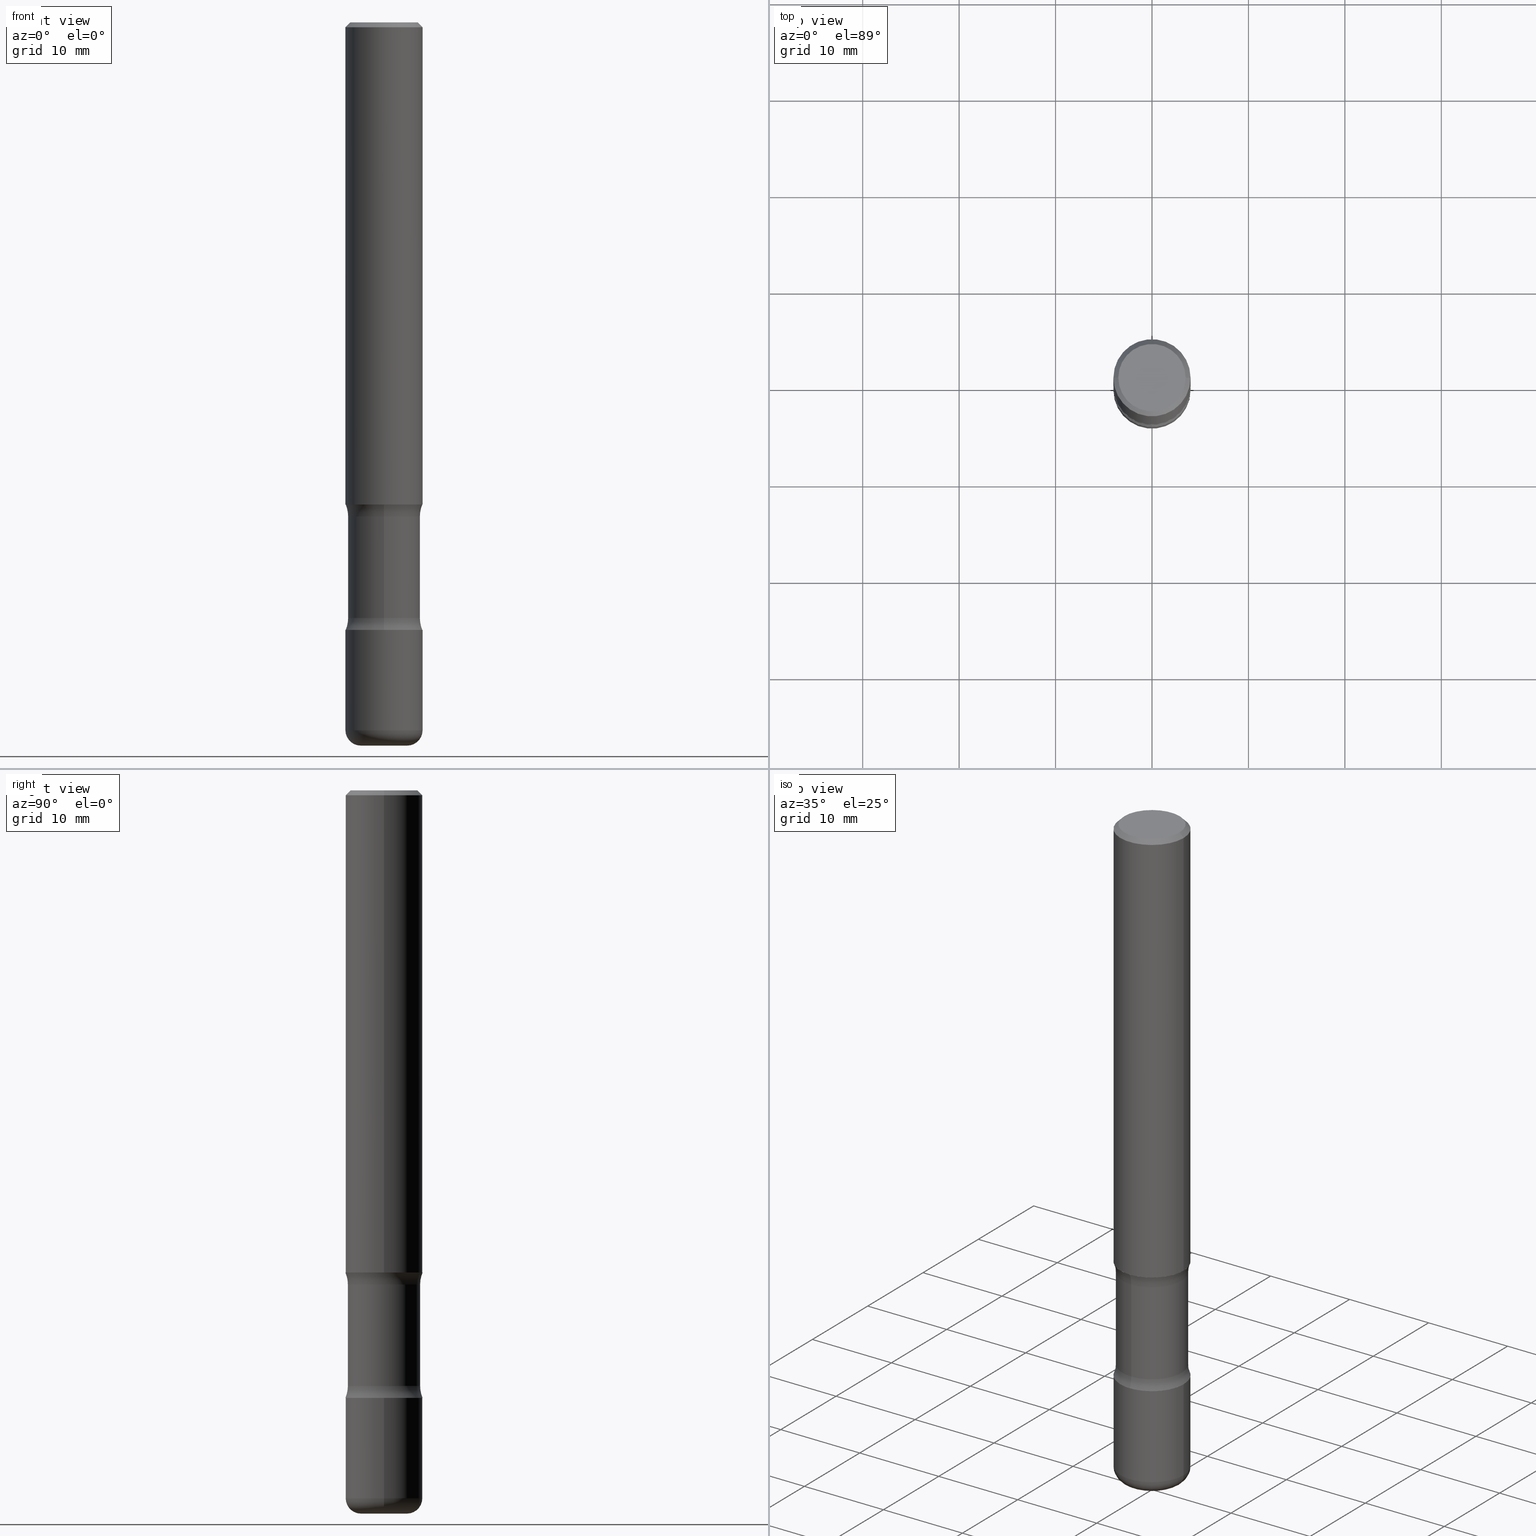
[diagram: canonical four-view strip — front | top / right | iso, engineering-drawing reading convention]
A machine part, canonical four-view strip (front | top / right | iso — engineering-drawing reading convention). The complete STEP part file that produces these views, byte-faithful:
ISO-10303-21;
HEADER;
FILE_DESCRIPTION (( 'STEP AP203' ),
    '1' );
FILE_NAME ('44952.STEP',
    '2024-03-02T03:51:45',
    ( '' ),
    ( '' ),
    'SwSTEP 2.0',
    'SolidWorks 2023',
    '' );
FILE_SCHEMA (( 'CONFIG_CONTROL_DESIGN' ));
ENDSEC;

DATA;
#1 = AXIS2_PLACEMENT_3D ( 'NONE', #12, #357, #534 ) ;
#2 = TOROIDAL_SURFACE ( 'NONE', #316, 0.2724999999999999090, 0.1249999999999999306 ) ;
#3 = CC_DESIGN_SECURITY_CLASSIFICATION ( #368, ( #401 ) ) ;
#4 = CARTESIAN_POINT ( 'NONE',  ( -0.1575000000000000844, 1.029986994958724576E-15, -0.02000000000000006981 ) ) ;
#5 = CARTESIAN_POINT ( 'NONE',  ( 6.065740826861613539E-29, -8.660270312866538847E-15, -2.480399999999999938 ) ) ;
#6 = EDGE_CURVE ( 'NONE', #45, #307, #181, .T. ) ;
#7 = ORIENTED_EDGE ( 'NONE', *, *, #93, .F. ) ;
#8 = DIRECTION ( 'NONE',  ( 1.962035113374103200E-29, -4.183785902285569894E-15, -1.000000000000000000 ) ) ;
#9 = MANIFOLD_SOLID_BREP ( 'Body-Move/Copy2[2]', #192 ) ;
#10 = FACE_OUTER_BOUND ( 'NONE', #52, .T. ) ;
#11 = CARTESIAN_POINT ( 'NONE',  ( 0.1375000000000000666, -1.046838268059733083E-15, -2.987958743069586240E-17 ) ) ;
#12 = CARTESIAN_POINT ( 'NONE',  ( 1.902857329669555641E-15, 0.2724999999999928035, -2.017489794855666929 ) ) ;
#13 = CC_DESIGN_DATE_AND_TIME_ASSIGNMENT ( #74, #362, ( #368 ) ) ;
#14 = CIRCLE ( 'NONE', #409, 0.1575000000000003619 ) ;
#15 = DIRECTION ( 'NONE',  ( 1.000000000000000000, -6.982962677686269866E-15, 0.000000000000000000 ) ) ;
#16 = CARTESIAN_POINT ( 'NONE',  ( 0.1575000000000003619, -1.118949939472451419E-14, -2.889800000000000590 ) ) ;
#17 = CARTESIAN_POINT ( 'NONE',  ( -0.1375000000000000666, 9.950721815702933218E-16, -2.987958743070971677E-17 ) ) ;
#18 = CALENDAR_DATE ( 2024, 1, 3 ) ;
#19 = EDGE_CURVE ( 'NONE', #298, #250, #95, .T. ) ;
#20 = AXIS2_PLACEMENT_3D ( 'NONE', #519, #264, #186 ) ;
#21 = CARTESIAN_POINT ( 'NONE',  ( 7.066915756113808586E-29, -1.008968277298892435E-14, -2.889800000000000590 ) ) ;
#22 = AXIS2_PLACEMENT_3D ( 'NONE', #21, #159, #288 ) ;
#23 = FACE_OUTER_BOUND ( 'NONE', #258, .T. ) ;
#24 = EDGE_CURVE ( 'NONE', #80, #390, #393, .T. ) ;
#25 = PERSON_AND_ORGANIZATION ( #191, #455 ) ;
#26 = EDGE_LOOP ( 'NONE', ( #391, #388 ) ) ;
#27 = ORIENTED_EDGE ( 'NONE', *, *, #299, .F. ) ;
#28 = DIRECTION ( 'NONE',  ( 1.000000000000000000, -6.860497997771530774E-15, 4.832320593947593736E-29 ) ) ;
#29 = ORIENTED_EDGE ( 'NONE', *, *, #178, .T. ) ;
#30 = ADVANCED_FACE ( 'NONE', ( #352 ), #523, .F. ) ;
#31 = PLANE ( 'NONE',  #104 ) ;
#32 = ORIENTED_EDGE ( 'NONE', *, *, #448, .F. ) ;
#33 = CLOSED_SHELL ( 'NONE', ( #385, #273, #216, #425, #275, #84, #317, #552 ) ) ;
#34 = CIRCLE ( 'NONE', #124, 0.06299999999999991718 ) ;
#35 = DIRECTION ( 'NONE',  ( -6.982962677686265922E-15, -1.000000000000000000, 0.000000000000000000 ) ) ;
#36 = EDGE_LOOP ( 'NONE', ( #474, #411, #117, #229 ) ) ;
#37 = DIRECTION ( 'NONE',  ( -2.445468806185136597E-29, 3.491481338843145583E-15, 1.000000000000000000 ) ) ;
#38 = VERTEX_POINT ( 'NONE', #438 ) ;
#39 = CARTESIAN_POINT ( 'NONE',  ( 0.09450000000000038924, -1.096953607037739528E-14, -2.952800000000000313 ) ) ;
#40 = ORIENTED_EDGE ( 'NONE', *, *, #150, .T. ) ;
#41 = CIRCLE ( 'NONE', #1, 0.1249999999999999445 ) ;
#42 = CC_DESIGN_PERSON_AND_ORGANIZATION_ASSIGNMENT ( #372, #198, ( #401 ) ) ;
#43 = CIRCLE ( 'NONE', #67, 0.1474999999999996037 ) ;
#44 = ADVANCED_FACE ( 'NONE', ( #10 ), #528, .T. ) ;
#45 = VERTEX_POINT ( 'NONE', #60 ) ;
#46 = ORIENTED_EDGE ( 'NONE', *, *, #91, .F. ) ;
#47 = DIRECTION ( 'NONE',  ( 6.982962677686265922E-15, 1.000000000000000000, -4.183785902285569894E-15 ) ) ;
#48 = DIRECTION ( 'NONE',  ( 1.000000000000000000, -6.982962677686269866E-15, 0.000000000000000000 ) ) ;
#49 = LENGTH_MEASURE_WITH_UNIT ( LENGTH_MEASURE( 0.02539999999999999897 ), #487 );
#50 = VECTOR ( 'NONE', #456, 39.37007874015748143 ) ;
#51 = LOCAL_TIME ( 22, 51, 45.00000000000000000, #371 ) ;
#52 = EDGE_LOOP ( 'NONE', ( #394, #88, #508, #546 ) ) ;
#53 = CARTESIAN_POINT ( 'NONE',  ( 5.157494750029220030E-29, -6.723553122559551895E-15, -2.017489794855666041 ) ) ;
#54 = DIRECTION ( 'NONE',  ( 6.982962677686265922E-15, 1.000000000000000000, -3.469013325287945405E-15 ) ) ;
#55 = DIRECTION ( 'NONE',  ( 1.000000000000000000, -6.982962677686267499E-15, 4.876176775795935793E-29 ) ) ;
#56 = AXIS2_PLACEMENT_3D ( 'NONE', #238, #536, #105 ) ;
#57 = LOCAL_TIME ( 22, 51, 45.00000000000000000, #505 ) ;
#58 = FACE_OUTER_BOUND ( 'NONE', #142, .T. ) ;
#59 = CALENDAR_DATE ( 2024, 1, 3 ) ;
#60 = CARTESIAN_POINT ( 'NONE',  ( 1.029986994958783741E-15, 0.1474999999999914990, -2.431410205144336256 ) ) ;
#61 = COORDINATED_UNIVERSAL_TIME_OFFSET ( 5, 0, .BEHIND. ) ;
#62 = EDGE_CURVE ( 'NONE', #253, #139, #133, .T. ) ;
#63 = APPROVAL_STATUS ( 'not_yet_approved' ) ;
#64 = VECTOR ( 'NONE', #397, 39.37007874015748143 ) ;
#65 = EDGE_LOOP ( 'NONE', ( #472, #32 ) ) ;
#66 = DIRECTION ( 'NONE',  ( -2.445468806185136597E-29, 3.491481338843145583E-15, 1.000000000000000000 ) ) ;
#67 = AXIS2_PLACEMENT_3D ( 'NONE', #53, #274, #308 ) ;
#68 = EDGE_CURVE ( 'NONE', #463, #298, #279, .T. ) ;
#69 = CALENDAR_DATE ( 2024, 1, 3 ) ;
#70 = DIRECTION ( 'NONE',  ( 6.982962677686265922E-15, 1.000000000000000000, -3.704200669375273043E-15 ) ) ;
#71 = VERTEX_POINT ( 'NONE', #404 ) ;
#72 = DIRECTION ( 'NONE',  ( 2.438088387897960049E-29, -3.491481338843145188E-15, -1.000000000000000000 ) ) ;
#73 = DIRECTION ( 'NONE',  ( 6.860497997771530774E-15, 1.000000000000000000, 0.000000000000000000 ) ) ;
#74 = DATE_AND_TIME ( #18, #125 ) ;
#75 = ORIENTED_EDGE ( 'NONE', *, *, #154, .T. ) ;
#76 = ORIENTED_EDGE ( 'NONE', *, *, #449, .T. ) ;
#77 = CARTESIAN_POINT ( 'NONE',  ( -0.09450000000000038924, -9.418219887695627890E-15, -2.889800000000000590 ) ) ;
#78 = AXIS2_PLACEMENT_3D ( 'NONE', #356, #265, #437 ) ;
#79 = DIRECTION ( 'NONE',  ( -2.445468806185136597E-29, 3.491481338843145583E-15, 1.000000000000000000 ) ) ;
#80 = VERTEX_POINT ( 'NONE', #17 ) ;
#81 = ORIENTED_EDGE ( 'NONE', *, *, #525, .T. ) ;
#82 = ORIENTED_EDGE ( 'NONE', *, *, #345, .T. ) ;
#83 = CIRCLE ( 'NONE', #219, 0.1575000000000003897 ) ;
#84 = ADVANCED_FACE ( 'NONE', ( #380 ), #31, .F. ) ;
#85 = CIRCLE ( 'NONE', #182, 0.1575000000000000844 ) ;
#86 = EDGE_CURVE ( 'NONE', #160, #307, #451, .T. ) ;
#87 = EDGE_LOOP ( 'NONE', ( #344, #526, #294, #213 ) ) ;
#88 = ORIENTED_EDGE ( 'NONE', *, *, #501, .F. ) ;
#89 = CYLINDRICAL_SURFACE ( 'NONE', #496, 0.1575000000000003064 ) ;
#90 = DIRECTION ( 'NONE',  ( 2.438088387897960049E-29, -3.491481338843145188E-15, -1.000000000000000000 ) ) ;
#91 = EDGE_CURVE ( 'NONE', #160, #139, #333, .T. ) ;
#92 = CARTESIAN_POINT ( 'NONE',  ( 0.1575000000000005007, -7.972797637248326287E-15, -1.968500000000001249 ) ) ;
#93 = EDGE_CURVE ( 'NONE', #463, #71, #83, .T. ) ;
#94 = CARTESIAN_POINT ( 'NONE',  ( 0.09450000000000038924, -1.074957274603027794E-14, -2.889800000000000590 ) ) ;
#95 = CIRCLE ( 'NONE', #123, 0.1575000000000003619 ) ;
#96 = CIRCLE ( 'NONE', #324, 0.1375000000000000666 ) ;
#97 = CC_DESIGN_APPROVAL ( #533, ( #368 ) ) ;
#98 = DIRECTION ( 'NONE',  ( 1.962035113374103200E-29, -4.183785902285569894E-15, -1.000000000000000000 ) ) ;
#99 = EDGE_CURVE ( 'NONE', #390, #207, #464, .T. ) ;
#100 = DIRECTION ( 'NONE',  ( 6.860497997771530774E-15, 1.000000000000000000, 0.000000000000000000 ) ) ;
#101 = CARTESIAN_POINT ( 'NONE',  ( 4.890937612370289799E-31, -6.982962677686315028E-17, -0.02000000000000006981 ) ) ;
#102 = CARTESIAN_POINT ( 'NONE',  ( 4.813905344975444077E-29, -6.872981015512735652E-15, -1.968500000000001249 ) ) ;
#103 = DIRECTION ( 'NONE',  ( 6.982962677686265922E-15, 1.000000000000000000, -3.704200669375281721E-15 ) ) ;
#104 = AXIS2_PLACEMENT_3D ( 'NONE', #121, #295, #157 ) ;
#105 = DIRECTION ( 'NONE',  ( -1.000000000000000000, 6.982962677686267499E-15, 0.000000000000000000 ) ) ;
#106 = AXIS2_PLACEMENT_3D ( 'NONE', #189, #266, #418 ) ;
#107 = COORDINATED_UNIVERSAL_TIME_OFFSET ( 5, 0, .BEHIND. ) ;
#108 = CC_DESIGN_APPROVAL ( #365, ( #401 ) ) ;
#109 = CYLINDRICAL_SURFACE ( 'NONE', #399, 0.1575000000000003064 ) ;
#110 = AXIS2_PLACEMENT_3D ( 'NONE', #547, #369, #327 ) ;
#111 = DIMENSIONAL_EXPONENTS ( 1.000000000000000000, 0.000000000000000000, 0.000000000000000000, 0.000000000000000000, 0.000000000000000000, 0.000000000000000000, 0.000000000000000000 ) ;
#112 = EDGE_LOOP ( 'NONE', ( #381, #429 ) ) ;
#113 = DIRECTION ( 'NONE',  ( 1.962035113374102920E-29, -4.183785902285569894E-15, -1.000000000000000000 ) ) ;
#114 = CIRCLE ( 'NONE', #201, 0.09450000000000038924 ) ;
#115 = FACE_OUTER_BOUND ( 'NONE', #112, .T. ) ;
#116 = APPROVAL_ROLE ( '' ) ;
#117 = ORIENTED_EDGE ( 'NONE', *, *, #448, .T. ) ;
#118 = EDGE_LOOP ( 'NONE', ( #131, #179, #82, #470 ) ) ;
#119 = ORIENTED_EDGE ( 'NONE', *, *, #6, .F. ) ;
#120 = ADVANCED_FACE ( 'NONE', ( #506 ), #199, .F. ) ;
#121 = CARTESIAN_POINT ( 'NONE',  ( 1.207425945004751623E-28, -5.572966082231867292E-17, -2.480399999999999938 ) ) ;
#122 = ORIENTED_EDGE ( 'NONE', *, *, #550, .T. ) ;
#123 = AXIS2_PLACEMENT_3D ( 'NONE', #353, #136, #48 ) ;
#124 = AXIS2_PLACEMENT_3D ( 'NONE', #94, #185, #145 ) ;
#125 = LOCAL_TIME ( 22, 51, 45.00000000000000000, #545 ) ;
#126 = ORIENTED_EDGE ( 'NONE', *, *, #468, .T. ) ;
#127 = ADVANCED_FACE ( 'NONE', ( #450 ), #109, .T. ) ;
#128 = EDGE_LOOP ( 'NONE', ( #245, #373, #289, #558 ) ) ;
#129 = DESIGN_CONTEXT ( 'detailed design', #412, 'design' ) ;
#130 = EDGE_CURVE ( 'NONE', #341, #307, #180, .T. ) ;
#131 = ORIENTED_EDGE ( 'NONE', *, *, #247, .F. ) ;
#132 = CC_DESIGN_PERSON_AND_ORGANIZATION_ASSIGNMENT ( #153, #457, ( #368 ) ) ;
#133 = CIRCLE ( 'NONE', #349, 0.1575000000000000289 ) ;
#134 = LOCAL_TIME ( 22, 51, 45.00000000000000000, #107 ) ;
#135 = FACE_OUTER_BOUND ( 'NONE', #87, .T. ) ;
#136 = DIRECTION ( 'NONE',  ( -2.445468806185136597E-29, 3.491481338843145583E-15, 1.000000000000000000 ) ) ;
#137 = DIRECTION ( 'NONE',  ( -2.445468806185136597E-29, 3.491481338843145583E-15, 1.000000000000000000 ) ) ;
#138 = ADVANCED_FACE ( 'NONE', ( #195 ), #403, .T. ) ;
#139 = VERTEX_POINT ( 'NONE', #315 ) ;
#140 = CARTESIAN_POINT ( 'NONE',  ( 5.148317776651165182E-29, -6.736695070757814587E-15, -2.017489794855666041 ) ) ;
#141 = CARTESIAN_POINT ( 'NONE',  ( 0.000000000000000000, 0.000000000000000000, 0.000000000000000000 ) ) ;
#142 = EDGE_LOOP ( 'NONE', ( #510, #40, #163, #458 ) ) ;
#143 = CARTESIAN_POINT ( 'NONE',  ( 0.000000000000000000, 0.000000000000000000, 0.000000000000000000 ) ) ;
#144 = DIRECTION ( 'NONE',  ( 1.000000000000000000, -6.982962677686267499E-15, 4.876176775795936353E-29 ) ) ;
#145 = DIRECTION ( 'NONE',  ( 1.000000000000000000, -6.982962677686265133E-15, 0.000000000000000000 ) ) ;
#146 = DIRECTION ( 'NONE',  ( -2.445468806185136597E-29, 3.491481338843145583E-15, 1.000000000000000000 ) ) ;
#147 = CC_DESIGN_PERSON_AND_ORGANIZATION_ASSIGNMENT ( #498, #283, ( #301 ) ) ;
#148 = DIRECTION ( 'NONE',  ( 1.000000000000000000, -6.982962677686265922E-15, 4.877551999457435150E-29 ) ) ;
#149 = CARTESIAN_POINT ( 'NONE',  ( -1.080528434648957995E-15, -0.1575000000000090772, -2.480399999999999494 ) ) ;
#150 = EDGE_CURVE ( 'NONE', #71, #250, #485, .T. ) ;
#151 = AXIS2_PLACEMENT_3D ( 'NONE', #476, #90, #433 ) ;
#152 = AXIS2_PLACEMENT_3D ( 'NONE', #402, #276, #15 ) ;
#153 = PERSON_AND_ORGANIZATION ( #191, #455 ) ;
#154 = EDGE_CURVE ( 'NONE', #38, #253, #41, .T. ) ;
#155 = APPLICATION_PROTOCOL_DEFINITION ( 'international standard', 'config_control_design', 1994, #540 ) ;
#156 = CARTESIAN_POINT ( 'NONE',  ( 4.813905344975444077E-29, -6.872981015512735652E-15, -1.968500000000001249 ) ) ;
#157 = DIRECTION ( 'NONE',  ( -6.982962677686265922E-15, -1.000000000000000000, 4.183785902285569894E-15 ) ) ;
#158 = APPROVAL_DATE_TIME ( #405, #365 ) ;
#159 = DIRECTION ( 'NONE',  ( -2.445468806185136597E-29, 3.491481338843145583E-15, 1.000000000000000000 ) ) ;
#160 = VERTEX_POINT ( 'NONE', #305 ) ;
#161 = APPROVAL_STATUS ( 'not_yet_approved' ) ;
#162 = AXIS2_PLACEMENT_3D ( 'NONE', #413, #72, #548 ) ;
#163 = ORIENTED_EDGE ( 'NONE', *, *, #19, .F. ) ;
#164 = DIRECTION ( 'NONE',  ( 1.962035113374103200E-29, -4.183785902285569894E-15, -1.000000000000000000 ) ) ;
#165 = TOROIDAL_SURFACE ( 'NONE', #529, 0.09450000000000038924, 0.06299999999999993106 ) ;
#166 = DIRECTION ( 'NONE',  ( 1.000000000000000000, -6.982962677686269866E-15, 0.000000000000000000 ) ) ;
#167 = ORIENTED_EDGE ( 'NONE', *, *, #130, .T. ) ;
#168 = DIRECTION ( 'NONE',  ( -2.445468806185136877E-29, 3.491481338843145188E-15, 1.000000000000000000 ) ) ;
#169 = VERTEX_POINT ( 'NONE', #478 ) ;
#170 = EDGE_CURVE ( 'NONE', #544, #207, #516, .T. ) ;
#171 = DIRECTION ( 'NONE',  ( 1.962035113374103200E-29, -4.183785902285569894E-15, -1.000000000000000000 ) ) ;
#172 = ORIENTED_EDGE ( 'NONE', *, *, #174, .T. ) ;
#173 = AXIS2_PLACEMENT_3D ( 'NONE', #77, #300, #311 ) ;
#174 = EDGE_CURVE ( 'NONE', #259, #390, #431, .T. ) ;
#175 = FACE_OUTER_BOUND ( 'NONE', #500, .T. ) ;
#176 = ORIENTED_EDGE ( 'NONE', *, *, #440, .T. ) ;
#177 = ORIENTED_EDGE ( 'NONE', *, *, #178, .F. ) ;
#178 = EDGE_CURVE ( 'NONE', #307, #45, #441, .T. ) ;
#179 = ORIENTED_EDGE ( 'NONE', *, *, #254, .T. ) ;
#180 = CIRCLE ( 'NONE', #408, 0.1249999999999999306 ) ;
#181 = CIRCLE ( 'NONE', #20, 0.1474999999999999645 ) ;
#182 = AXIS2_PLACEMENT_3D ( 'NONE', #101, #439, #319 ) ;
#183 = DIRECTION ( 'NONE',  ( -0.7071067811865472397, 2.468850131082253905E-15, -0.7071067811865477948 ) ) ;
#184 =( CONVERSION_BASED_UNIT ( 'INCH', #49 ) LENGTH_UNIT ( ) NAMED_UNIT ( #111 ) );
#185 = DIRECTION ( 'NONE',  ( -6.982962677686266711E-15, -1.000000000000000000, 3.491481338843145583E-15 ) ) ;
#186 = DIRECTION ( 'NONE',  ( 6.982962677686265922E-15, 1.000000000000000000, -3.704200669375273043E-15 ) ) ;
#187 = FACE_OUTER_BOUND ( 'NONE', #424, .T. ) ;
#188 = CC_DESIGN_DATE_AND_TIME_ASSIGNMENT ( #204, #291, ( #267 ) ) ;
#189 = CARTESIAN_POINT ( 'NONE',  ( 6.992606214419540956E-29, -1.063669077310624428E-14, -2.952800000000000757 ) ) ;
#190 = CYLINDRICAL_SURFACE ( 'NONE', #78, 0.1575000000000003619 ) ;
#191 = PERSON ( 'UNSPECIFIED', 'UNSPECIFIED', 'UNSPECIFIED', ('UNSPECIFIED'), ('UNSPECIFIED'), ('UNSPECIFIED') ) ;
#192 = CLOSED_SHELL ( 'NONE', ( #555, #454, #44, #120, #392, #127 ) ) ;
#193 = VECTOR ( 'NONE', #522, 39.37007874015748143 ) ;
#194 = CARTESIAN_POINT ( 'NONE',  ( 4.813905344975444077E-29, -6.872981015512735652E-15, -1.968500000000001249 ) ) ;
#195 = FACE_OUTER_BOUND ( 'NONE', #215, .T. ) ;
#196 = DIRECTION ( 'NONE',  ( 6.982962677686264344E-15, 1.000000000000000000, -3.469013325287952504E-15 ) ) ;
#197 = CARTESIAN_POINT ( 'NONE',  ( 5.157494750029220030E-29, -6.723553122559551895E-15, -2.017489794855666041 ) ) ;
#198 = PERSON_AND_ORGANIZATION_ROLE ( 'design_supplier' ) ;
#199 = PLANE ( 'NONE',  #284 ) ;
#200 = CIRCLE ( 'NONE', #173, 0.06299999999999991718 ) ;
#201 = AXIS2_PLACEMENT_3D ( 'NONE', #329, #481, #535 ) ;
#202 = CARTESIAN_POINT ( 'NONE',  ( 0.1575000000000003619, -1.099816621735589650E-15, 7.679978421878617651E-30 ) ) ;
#203 = PLANE ( 'NONE',  #162 ) ;
#204 = DATE_AND_TIME ( #59, #134 ) ;
#205 = ORIENTED_EDGE ( 'NONE', *, *, #360, .F. ) ;
#206 = DATE_AND_TIME ( #321, #57 ) ;
#207 = VERTEX_POINT ( 'NONE', #249 ) ;
#208 = DIRECTION ( 'NONE',  ( 1.000000000000000000, -6.982962677686265922E-15, 4.876176775795935793E-29 ) ) ;
#209 = CIRCLE ( 'NONE', #386, 0.1375000000000000666 ) ;
#210 = ORIENTED_EDGE ( 'NONE', *, *, #501, .T. ) ;
#211 = CIRCLE ( 'NONE', #334, 0.1575000000000003619 ) ;
#212 = DIRECTION ( 'NONE',  ( 2.438088387897960049E-29, -3.491481338843145188E-15, -1.000000000000000000 ) ) ;
#213 = ORIENTED_EDGE ( 'NONE', *, *, #6, .T. ) ;
#214 = CARTESIAN_POINT ( 'NONE',  ( 0.1575000000000003619, -9.760086934602128694E-15, -2.480399999999999938 ) ) ;
#215 = EDGE_LOOP ( 'NONE', ( #340, #76, #551, #460 ) ) ;
#216 = ADVANCED_FACE ( 'NONE', ( #414 ), #227, .F. ) ;
#217 = ORIENTED_EDGE ( 'NONE', *, *, #170, .F. ) ;
#218 = PRODUCT_DEFINITION_SHAPE ( 'NONE', 'NONE',  #267 ) ;
#219 = AXIS2_PLACEMENT_3D ( 'NONE', #467, #79, #446 ) ;
#220 = APPROVAL_PERSON_ORGANIZATION ( #452, #339, #116 ) ;
#221 = DIRECTION ( 'NONE',  ( -2.438088387897960049E-29, 3.491481338843145188E-15, 1.000000000000000000 ) ) ;
#222 = VERTEX_POINT ( 'NONE', #39 ) ;
#223 = FACE_OUTER_BOUND ( 'NONE', #262, .T. ) ;
#224 = EDGE_LOOP ( 'NONE', ( #303, #81 ) ) ;
#225 = ORIENTED_EDGE ( 'NONE', *, *, #86, .F. ) ;
#226 = FACE_OUTER_BOUND ( 'NONE', #128, .T. ) ;
#227 = TOROIDAL_SURFACE ( 'NONE', #539, 0.2724999999999995204, 0.1249999999999999445 ) ;
#228 = AXIS2_PLACEMENT_3D ( 'NONE', #156, #66, #166 ) ;
#229 = ORIENTED_EDGE ( 'NONE', *, *, #154, .F. ) ;
#230 = DIRECTION ( 'NONE',  ( 1.962035113374103200E-29, -4.183785902285569894E-15, -1.000000000000000000 ) ) ;
#231 = CARTESIAN_POINT ( 'NONE',  ( 1.029986994958792616E-15, 0.1474999999999891676, -2.952800000000001202 ) ) ;
#232 = DIRECTION ( 'NONE',  ( 6.982962677686265922E-15, 1.000000000000000000, -3.469013325287945405E-15 ) ) ;
#233 = CARTESIAN_POINT ( 'NONE',  ( -0.1575000000000003619, 1.119104808822160364E-15, -7.747322767151495202E-30 ) ) ;
#234 = CARTESIAN_POINT ( 'NONE',  ( 4.890937612370289799E-31, -6.982962677686315028E-17, -0.02000000000000006981 ) ) ;
#235 = EDGE_CURVE ( 'NONE', #556, #80, #209, .T. ) ;
#236 = CC_DESIGN_PERSON_AND_ORGANIZATION_ASSIGNMENT ( #459, #287, ( #401 ) ) ;
#237 = CARTESIAN_POINT ( 'NONE',  ( 5.969783302446763592E-29, -8.455075258413428143E-15, -2.431410205144335368 ) ) ;
#238 = CARTESIAN_POINT ( 'NONE',  ( 4.890937612370289799E-31, -6.982962677686315028E-17, -0.02000000000000006981 ) ) ;
#239 = CARTESIAN_POINT ( 'NONE',  ( 4.890937612370289799E-31, -6.982962677686315028E-17, -0.02000000000000006981 ) ) ;
#240 = APPROVAL_ROLE ( '' ) ;
#241 = CARTESIAN_POINT ( 'NONE',  ( -0.09450000000000038924, -9.304380588104755985E-15, -2.952800000000000313 ) ) ;
#242 = PLANE ( 'NONE',  #358 ) ;
#243 = ADVANCED_BREP_SHAPE_REPRESENTATION ( '44952', ( #383, #9, #515, #296 ), #285 ) ;
#244 = AXIS2_PLACEMENT_3D ( 'NONE', #102, #221, #208 ) ;
#245 = ORIENTED_EDGE ( 'NONE', *, *, #235, .F. ) ;
#246 = CARTESIAN_POINT ( 'NONE',  ( 1.099816621735637967E-15, 0.1574999999999935341, -1.968500000000001693 ) ) ;
#247 = EDGE_CURVE ( 'NONE', #292, #71, #200, .T. ) ;
#248 = DATE_AND_TIME ( #69, #326 ) ;
#249 = CARTESIAN_POINT ( 'NONE',  ( 0.1575000000000000844, -1.150358061425880064E-15, -0.02000000000000006981 ) ) ;
#250 = VERTEX_POINT ( 'NONE', #549 ) ;
#251 = SHAPE_DEFINITION_REPRESENTATION ( #218, #243 ) ;
#252 = FACE_OUTER_BOUND ( 'NONE', #320, .T. ) ;
#253 = VERTEX_POINT ( 'NONE', #246 ) ;
#254 = EDGE_CURVE ( 'NONE', #292, #222, #482, .T. ) ;
#255 = CIRCLE ( 'NONE', #228, 0.1575000000000005007 ) ;
#256 = ORIENTED_EDGE ( 'NONE', *, *, #86, .T. ) ;
#257 = AXIS2_PLACEMENT_3D ( 'NONE', #194, #313, #475 ) ;
#258 = EDGE_LOOP ( 'NONE', ( #122, #256, #119, #205 ) ) ;
#259 = VERTEX_POINT ( 'NONE', #376 ) ;
#260 = CARTESIAN_POINT ( 'NONE',  ( -0.1575000000000003064, 1.119104808822159970E-15, -7.747322767151490998E-30 ) ) ;
#261 = EDGE_LOOP ( 'NONE', ( #225, #126, #430, #177 ) ) ;
#262 = EDGE_LOOP ( 'NONE', ( #421, #559 ) ) ;
#263 = ADVANCED_FACE ( 'NONE', ( #115 ), #203, .T. ) ;
#264 = DIRECTION ( 'NONE',  ( 1.962035113374103200E-29, -4.183785902285569894E-15, -1.000000000000000000 ) ) ;
#265 = DIRECTION ( 'NONE',  ( -2.445468806185136597E-29, 3.491481338843145583E-15, 1.000000000000000000 ) ) ;
#266 = DIRECTION ( 'NONE',  ( 1.962035113374103200E-29, -4.183785902285569894E-15, -1.000000000000000000 ) ) ;
#267 = PRODUCT_DEFINITION ( 'UNKNOWN', '', #401, #129 ) ;
#268 = DIRECTION ( 'NONE',  ( 1.000000000000000000, -6.982962677686269077E-15, 0.000000000000000000 ) ) ;
#269 = CONICAL_SURFACE ( 'NONE', #466, 0.1575000000000000844, 0.7853981633974479459 ) ;
#270 = FACE_OUTER_BOUND ( 'NONE', #417, .T. ) ;
#271 = FACE_OUTER_BOUND ( 'NONE', #261, .T. ) ;
#272 = UNCERTAINTY_MEASURE_WITH_UNIT (LENGTH_MEASURE( 1.000000000000000082E-05 ), #184, 'distance_accuracy_value', 'NONE');
#273 = ADVANCED_FACE ( 'NONE', ( #270 ), #471, .F. ) ;
#274 = DIRECTION ( 'NONE',  ( 1.962035113374103200E-29, -4.183785902285569894E-15, -1.000000000000000000 ) ) ;
#275 = ADVANCED_FACE ( 'NONE', ( #389 ), #242, .F. ) ;
#276 = DIRECTION ( 'NONE',  ( -2.445468806185136597E-29, 3.491481338843145583E-15, 1.000000000000000000 ) ) ;
#277 = AXIS2_PLACEMENT_3D ( 'NONE', #234, #146, #367 ) ;
#278 = CIRCLE ( 'NONE', #257, 0.1575000000000005007 ) ;
#279 = LINE ( 'NONE', #202, #375 ) ;
#280 = EDGE_CURVE ( 'NONE', #259, #544, #255, .T. ) ;
#281 = APPROVAL_DATE_TIME ( #206, #339 ) ;
#282 = CARTESIAN_POINT ( 'NONE',  ( 9.601573681818620671E-16, 0.1375000000000000666, -4.950184778062842033E-16 ) ) ;
#283 = PERSON_AND_ORGANIZATION_ROLE ( 'design_owner' ) ;
#284 = AXIS2_PLACEMENT_3D ( 'NONE', #282, #212, #379 ) ;
#285 =( GEOMETRIC_REPRESENTATION_CONTEXT ( 3 ) GLOBAL_UNCERTAINTY_ASSIGNED_CONTEXT ( ( #272 ) ) GLOBAL_UNIT_ASSIGNED_CONTEXT ( ( #184, #370, #538 ) ) REPRESENTATION_CONTEXT ( 'NONE', 'WORKASPACE' ) );
#286 = CARTESIAN_POINT ( 'NONE',  ( -1.011923454671229450E-15, -0.1475000000000104283, -2.952800000000000313 ) ) ;
#287 = PERSON_AND_ORGANIZATION_ROLE ( 'creator' ) ;
#288 = DIRECTION ( 'NONE',  ( 1.000000000000000000, -6.982962677686273021E-15, 4.883557194083115143E-29 ) ) ;
#289 = ORIENTED_EDGE ( 'NONE', *, *, #531, .T. ) ;
#290 = ADVANCED_FACE ( 'NONE', ( #453 ), #426, .T. ) ;
#291 = DATE_TIME_ROLE ( 'creation_date' ) ;
#292 = VERTEX_POINT ( 'NONE', #241 ) ;
#293 = CC_DESIGN_PERSON_AND_ORGANIZATION_ASSIGNMENT ( #25, #445, ( #267 ) ) ;
#294 = ORIENTED_EDGE ( 'NONE', *, *, #299, .T. ) ;
#295 = DIRECTION ( 'NONE',  ( -1.962035113374102920E-29, 4.183785902285569894E-15, 1.000000000000000000 ) ) ;
#296 = AXIS2_PLACEMENT_3D ( 'NONE', #537, #330, #447 ) ;
#297 = ORIENTED_EDGE ( 'NONE', *, *, #247, .T. ) ;
#298 = VERTEX_POINT ( 'NONE', #214 ) ;
#299 = EDGE_CURVE ( 'NONE', #169, #45, #542, .T. ) ;
#300 = DIRECTION ( 'NONE',  ( 7.105427357601001859E-15, 1.000000000000000000, -3.491481338843145583E-15 ) ) ;
#301 = PRODUCT ( '44952', '44952', '', ( #410 ) ) ;
#302 = ORIENTED_EDGE ( 'NONE', *, *, #280, .T. ) ;
#303 = ORIENTED_EDGE ( 'NONE', *, *, #514, .T. ) ;
#304 = VECTOR ( 'NONE', #183, 39.37007874015748143 ) ;
#305 = CARTESIAN_POINT ( 'NONE',  ( -1.046225944660106443E-15, -0.1475000000000063483, -2.017489794855665597 ) ) ;
#306 = CIRCLE ( 'NONE', #152, 0.1575000000000003619 ) ;
#307 = VERTEX_POINT ( 'NONE', #346 ) ;
#308 = DIRECTION ( 'NONE',  ( 6.982962677686265922E-15, 1.000000000000000000, -3.704200669375281721E-15 ) ) ;
#309 = ORIENTED_EDGE ( 'NONE', *, *, #99, .F. ) ;
#310 = DIRECTION ( 'NONE',  ( -1.000000000000000000, 6.982962677686267499E-15, 0.000000000000000000 ) ) ;
#311 = DIRECTION ( 'NONE',  ( -1.000000000000000000, 7.105427357600993970E-15, 0.000000000000000000 ) ) ;
#312 = PLANE ( 'NONE',  #244 ) ;
#313 = DIRECTION ( 'NONE',  ( -2.445468806185136597E-29, 3.491481338843145583E-15, 1.000000000000000000 ) ) ;
#314 = AXIS2_PLACEMENT_3D ( 'NONE', #363, #541, #70 ) ;
#315 = CARTESIAN_POINT ( 'NONE',  ( -1.080528434648966081E-15, -0.1575000000000065792, -1.968500000000000583 ) ) ;
#316 = AXIS2_PLACEMENT_3D ( 'NONE', #237, #355, #462 ) ;
#317 = ADVANCED_FACE ( 'NONE', ( #135 ), #2, .F. ) ;
#318 = CARTESIAN_POINT ( 'NONE',  ( 7.066915756113808586E-29, -1.008968277298892435E-14, -2.889800000000000590 ) ) ;
#319 = DIRECTION ( 'NONE',  ( 1.000000000000000000, -6.982962677686267499E-15, 0.000000000000000000 ) ) ;
#320 = EDGE_LOOP ( 'NONE', ( #46, #423, #75, #469 ) ) ;
#321 = CALENDAR_DATE ( 2024, 1, 3 ) ;
#322 = CARTESIAN_POINT ( 'NONE',  ( 4.813905344975444077E-29, -6.872981015512735652E-15, -1.968500000000001249 ) ) ;
#323 = VECTOR ( 'NONE', #168, 39.37007874015748143 ) ;
#324 = AXIS2_PLACEMENT_3D ( 'NONE', #477, #436, #148 ) ;
#325 = EDGE_CURVE ( 'NONE', #222, #292, #114, .T. ) ;
#326 = LOCAL_TIME ( 22, 51, 45.00000000000000000, #61 ) ;
#327 = DIRECTION ( 'NONE',  ( 1.000000000000000000, -6.982962677686258033E-15, 0.000000000000000000 ) ) ;
#328 = PERSON_AND_ORGANIZATION ( #191, #455 ) ;
#329 = CARTESIAN_POINT ( 'NONE',  ( 7.220980290903472425E-29, -1.030964609733604011E-14, -2.952800000000000313 ) ) ;
#330 = DIRECTION ( 'NONE',  ( 0.000000000000000000, 0.000000000000000000, 1.000000000000000000 ) ) ;
#331 = SECURITY_CLASSIFICATION_LEVEL ( 'unclassified' ) ;
#332 = ORIENTED_EDGE ( 'NONE', *, *, #325, .T. ) ;
#333 = CIRCLE ( 'NONE', #512, 0.1249999999999999445 ) ;
#334 = AXIS2_PLACEMENT_3D ( 'NONE', #5, #98, #232 ) ;
#335 = DIRECTION ( 'NONE',  ( -2.445468806185136877E-29, 3.491481338843145188E-15, 1.000000000000000000 ) ) ;
#336 = APPROVAL_PERSON_ORGANIZATION ( #416, #365, #240 ) ;
#337 = APPROVAL_DATE_TIME ( #248, #533 ) ;
#338 = ORIENTED_EDGE ( 'NONE', *, *, #170, .T. ) ;
#339 = APPROVAL ( #63, 'UNSPECIFIED' ) ;
#340 = ORIENTED_EDGE ( 'NONE', *, *, #150, .F. ) ;
#341 = VERTEX_POINT ( 'NONE', #149 ) ;
#342 = AXIS2_PLACEMENT_3D ( 'NONE', #318, #137, #268 ) ;
#343 = DIRECTION ( 'NONE',  ( 1.000000000000000000, -6.982962677686265922E-15, 4.877551999457435150E-29 ) ) ;
#344 = ORIENTED_EDGE ( 'NONE', *, *, #130, .F. ) ;
#345 = EDGE_CURVE ( 'NONE', #222, #463, #34, .T. ) ;
#346 = CARTESIAN_POINT ( 'NONE',  ( -1.046225944660099738E-15, -0.1475000000000084022, -2.431410205144335368 ) ) ;
#347 = ORIENTED_EDGE ( 'NONE', *, *, #525, .F. ) ;
#348 = ORIENTED_EDGE ( 'NONE', *, *, #345, .F. ) ;
#349 = AXIS2_PLACEMENT_3D ( 'NONE', #490, #406, #196 ) ;
#350 = DIRECTION ( 'NONE',  ( 1.962035113374103200E-29, -4.183785902285569894E-15, -1.000000000000000000 ) ) ;
#351 = CIRCLE ( 'NONE', #554, 0.1474999999999996037 ) ;
#352 = FACE_OUTER_BOUND ( 'NONE', #26, .T. ) ;
#353 = CARTESIAN_POINT ( 'NONE',  ( 6.065740826861613539E-29, -8.660270312866538847E-15, -2.480399999999999938 ) ) ;
#354 = CYLINDRICAL_SURFACE ( 'NONE', #387, 0.1474999999999997979 ) ;
#355 = DIRECTION ( 'NONE',  ( 1.962035113374103200E-29, -4.183785902285569894E-15, -1.000000000000000000 ) ) ;
#356 = CARTESIAN_POINT ( 'NONE',  ( 0.000000000000000000, 0.000000000000000000, 0.000000000000000000 ) ) ;
#357 = DIRECTION ( 'NONE',  ( -1.000000000000000000, 6.982962677686265922E-15, -4.883557194083112340E-29 ) ) ;
#358 = AXIS2_PLACEMENT_3D ( 'NONE', #322, #113, #415 ) ;
#359 = DIRECTION ( 'NONE',  ( 6.982962677686264344E-15, 1.000000000000000000, -3.469013325287952504E-15 ) ) ;
#360 = EDGE_CURVE ( 'NONE', #38, #45, #480, .T. ) ;
#361 = ADVANCED_FACE ( 'NONE', ( #175 ), #165, .T. ) ;
#362 = DATE_TIME_ROLE ( 'classification_date' ) ;
#363 = CARTESIAN_POINT ( 'NONE',  ( 5.969621129157807163E-29, -8.455307499793547394E-15, -2.431410205144335812 ) ) ;
#364 = DIRECTION ( 'NONE',  ( 1.000000000000000000, -6.982962677686273021E-15, 4.883557194083115143E-29 ) ) ;
#365 = APPROVAL ( #161, 'UNSPECIFIED' ) ;
#366 = VECTOR ( 'NONE', #171, 39.37007874015748143 ) ;
#367 = DIRECTION ( 'NONE',  ( 1.000000000000000000, -6.982962677686267499E-15, 0.000000000000000000 ) ) ;
#368 = SECURITY_CLASSIFICATION ( '', '', #331 ) ;
#369 = DIRECTION ( 'NONE',  ( -2.445468806185136597E-29, 3.491481338843145583E-15, 1.000000000000000000 ) ) ;
#370 =( NAMED_UNIT ( * ) PLANE_ANGLE_UNIT ( ) SI_UNIT ( $, .RADIAN. ) );
#371 = COORDINATED_UNIVERSAL_TIME_OFFSET ( 5, 0, .BEHIND. ) ;
#372 = PERSON_AND_ORGANIZATION ( #191, #455 ) ;
#373 = ORIENTED_EDGE ( 'NONE', *, *, #422, .T. ) ;
#374 = CARTESIAN_POINT ( 'NONE',  ( 7.066915756113808586E-29, -1.008968277298892435E-14, -2.889800000000000590 ) ) ;
#375 = VECTOR ( 'NONE', #444, 39.37007874015748143 ) ;
#376 = CARTESIAN_POINT ( 'NONE',  ( -0.1575000000000005007, -2.352300512322634377E-15, -1.968500000000001249 ) ) ;
#377 = CC_DESIGN_APPROVAL ( #339, ( #267 ) ) ;
#378 = ORIENTED_EDGE ( 'NONE', *, *, #531, .F. ) ;
#379 = DIRECTION ( 'NONE',  ( -1.000000000000000000, 6.982962677686265922E-15, -4.876176775795935793E-29 ) ) ;
#380 = FACE_OUTER_BOUND ( 'NONE', #224, .T. ) ;
#381 = ORIENTED_EDGE ( 'NONE', *, *, #325, .F. ) ;
#382 = CARTESIAN_POINT ( 'NONE',  ( 0.1575000000000003064, -1.099816621735589255E-15, 7.679978421878613447E-30 ) ) ;
#383 = MANIFOLD_SOLID_BREP ( 'Body-Move/Copy2[1]', #491 ) ;
#384 = CARTESIAN_POINT ( 'NONE',  ( 7.306959900346538153E-46, -1.043240219266313067E-31, -2.987958743070287587E-17 ) ) ;
#385 = ADVANCED_FACE ( 'NONE', ( #23 ), #473, .T. ) ;
#386 = AXIS2_PLACEMENT_3D ( 'NONE', #384, #521, #343 ) ;
#387 = AXIS2_PLACEMENT_3D ( 'NONE', #395, #8, #398 ) ;
#388 = ORIENTED_EDGE ( 'NONE', *, *, #461, .T. ) ;
#389 = FACE_OUTER_BOUND ( 'NONE', #65, .T. ) ;
#390 = VERTEX_POINT ( 'NONE', #465 ) ;
#391 = ORIENTED_EDGE ( 'NONE', *, *, #19, .T. ) ;
#392 = ADVANCED_FACE ( 'NONE', ( #223 ), #312, .F. ) ;
#393 = LINE ( 'NONE', #4, #304 ) ;
#394 = ORIENTED_EDGE ( 'NONE', *, *, #422, .F. ) ;
#395 = CARTESIAN_POINT ( 'NONE',  ( 6.992606214419540956E-29, -1.063669077310624428E-14, -2.952800000000000757 ) ) ;
#396 = DIRECTION ( 'NONE',  ( -2.445468806185136597E-29, 3.491481338843145583E-15, 1.000000000000000000 ) ) ;
#397 = DIRECTION ( 'NONE',  ( -2.445468806185136877E-29, 3.491481338843145188E-15, 1.000000000000000000 ) ) ;
#398 = DIRECTION ( 'NONE',  ( 6.982962677686265922E-15, 1.000000000000000000, -3.704200669375276987E-15 ) ) ;
#399 = AXIS2_PLACEMENT_3D ( 'NONE', #486, #37, #55 ) ;
#400 = AXIS2_PLACEMENT_3D ( 'NONE', #140, #524, #532 ) ;
#401 = PRODUCT_DEFINITION_FORMATION_WITH_SPECIFIED_SOURCE ( 'ANY', '', #301, .NOT_KNOWN. ) ;
#402 = CARTESIAN_POINT ( 'NONE',  ( 6.065740826861613539E-29, -8.660270312866538847E-15, -2.480399999999999938 ) ) ;
#403 = CYLINDRICAL_SURFACE ( 'NONE', #492, 0.1575000000000003619 ) ;
#404 = CARTESIAN_POINT ( 'NONE',  ( -0.1575000000000003619, -8.970577964166765164E-15, -2.889800000000000590 ) ) ;
#405 = DATE_AND_TIME ( #543, #51 ) ;
#406 = DIRECTION ( 'NONE',  ( 1.962035113374103200E-29, -4.183785902285569894E-15, -1.000000000000000000 ) ) ;
#407 = APPLICATION_PROTOCOL_DEFINITION ( 'international standard', 'config_control_design', 1994, #412 ) ;
#408 = AXIS2_PLACEMENT_3D ( 'NONE', #494, #442, #100 ) ;
#409 = AXIS2_PLACEMENT_3D ( 'NONE', #435, #520, #54 ) ;
#410 = MECHANICAL_CONTEXT ( 'NONE', #540, 'mechanical' ) ;
#411 = ORIENTED_EDGE ( 'NONE', *, *, #91, .T. ) ;
#412 = APPLICATION_CONTEXT ( 'configuration controlled 3d designs of mechanical parts and assemblies' ) ;
#413 = CARTESIAN_POINT ( 'NONE',  ( 1.914241352112389587E-28, 6.762524814180949395E-15, -2.952800000000000313 ) ) ;
#414 = FACE_OUTER_BOUND ( 'NONE', #36, .T. ) ;
#415 = DIRECTION ( 'NONE',  ( 6.982962677686265922E-15, 1.000000000000000000, -4.183785902285569894E-15 ) ) ;
#416 = PERSON_AND_ORGANIZATION ( #191, #455 ) ;
#417 = EDGE_LOOP ( 'NONE', ( #347, #167, #29, #27 ) ) ;
#418 = DIRECTION ( 'NONE',  ( 6.982962677686265922E-15, 1.000000000000000000, -3.704200669375276987E-15 ) ) ;
#419 = TOROIDAL_SURFACE ( 'NONE', #400, 0.2724999999999995204, 0.1249999999999999445 ) ;
#420 = DIRECTION ( 'NONE',  ( -1.000000000000000000, 6.982962677686265922E-15, -4.883557194083112340E-29 ) ) ;
#421 = ORIENTED_EDGE ( 'NONE', *, *, #440, .F. ) ;
#422 = EDGE_CURVE ( 'NONE', #556, #207, #503, .T. ) ;
#423 = ORIENTED_EDGE ( 'NONE', *, *, #550, .F. ) ;
#424 = EDGE_LOOP ( 'NONE', ( #176, #172, #378, #217 ) ) ;
#425 = ADVANCED_FACE ( 'NONE', ( #252 ), #419, .F. ) ;
#426 = TOROIDAL_SURFACE ( 'NONE', #22, 0.09450000000000038924, 0.06299999999999993106 ) ;
#427 = EDGE_LOOP ( 'NONE', ( #518, #302, #338, #309 ) ) ;
#428 = CARTESIAN_POINT ( 'NONE',  ( 5.148317776651165182E-29, -6.736695070757814587E-15, -2.017489794855666041 ) ) ;
#429 = ORIENTED_EDGE ( 'NONE', *, *, #254, .F. ) ;
#430 = ORIENTED_EDGE ( 'NONE', *, *, #360, .T. ) ;
#431 = LINE ( 'NONE', #260, #323 ) ;
#432 = VECTOR ( 'NONE', #335, 39.37007874015748143 ) ;
#433 = DIRECTION ( 'NONE',  ( -1.000000000000000000, 6.982962677686265922E-15, -4.876176775795935793E-29 ) ) ;
#434 = AXIS2_PLACEMENT_3D ( 'NONE', #507, #420, #35 ) ;
#435 = CARTESIAN_POINT ( 'NONE',  ( 6.065740826861613539E-29, -8.660270312866538847E-15, -2.480399999999999938 ) ) ;
#436 = DIRECTION ( 'NONE',  ( -2.445468806185136597E-29, 3.491481338843145583E-15, 1.000000000000000000 ) ) ;
#437 = DIRECTION ( 'NONE',  ( 1.000000000000000000, -6.982962677686267499E-15, 4.876176775795936353E-29 ) ) ;
#438 = CARTESIAN_POINT ( 'NONE',  ( 1.029986994958773091E-15, 0.1474999999999928868, -2.017489794855666485 ) ) ;
#439 = DIRECTION ( 'NONE',  ( -2.445468806185136597E-29, 3.491481338843145583E-15, 1.000000000000000000 ) ) ;
#440 = EDGE_CURVE ( 'NONE', #544, #259, #278, .T. ) ;
#441 = CIRCLE ( 'NONE', #314, 0.1474999999999999645 ) ;
#442 = DIRECTION ( 'NONE',  ( 1.000000000000000000, -6.860497997771530774E-15, 4.832320593947593736E-29 ) ) ;
#443 = APPROVAL_PERSON_ORGANIZATION ( #328, #533, #497 ) ;
#444 = DIRECTION ( 'NONE',  ( -2.445468806185136877E-29, 3.491481338843145188E-15, 1.000000000000000000 ) ) ;
#445 = PERSON_AND_ORGANIZATION_ROLE ( 'creator' ) ;
#446 = DIRECTION ( 'NONE',  ( 1.000000000000000000, -6.982962677686269077E-15, 0.000000000000000000 ) ) ;
#447 = DIRECTION ( 'NONE',  ( 1.000000000000000000, 0.000000000000000000, 0.000000000000000000 ) ) ;
#448 = EDGE_CURVE ( 'NONE', #139, #253, #513, .T. ) ;
#449 = EDGE_CURVE ( 'NONE', #71, #463, #502, .T. ) ;
#450 = FACE_OUTER_BOUND ( 'NONE', #427, .T. ) ;
#451 = LINE ( 'NONE', #286, #50 ) ;
#452 = PERSON_AND_ORGANIZATION ( #191, #455 ) ;
#453 = FACE_OUTER_BOUND ( 'NONE', #118, .T. ) ;
#454 = ADVANCED_FACE ( 'NONE', ( #226 ), #269, .T. ) ;
#455 = ORGANIZATION ( 'UNSPECIFIED', 'UNSPECIFIED', '' ) ;
#456 = DIRECTION ( 'NONE',  ( 1.962035113374103200E-29, -4.183785902285569894E-15, -1.000000000000000000 ) ) ;
#457 = PERSON_AND_ORGANIZATION_ROLE ( 'classification_officer' ) ;
#458 = ORIENTED_EDGE ( 'NONE', *, *, #68, .F. ) ;
#459 = PERSON_AND_ORGANIZATION ( #191, #455 ) ;
#460 = ORIENTED_EDGE ( 'NONE', *, *, #461, .F. ) ;
#461 = EDGE_CURVE ( 'NONE', #250, #298, #306, .T. ) ;
#462 = DIRECTION ( 'NONE',  ( 6.982962677686265922E-15, 1.000000000000000000, -4.183785902285569894E-15 ) ) ;
#463 = VERTEX_POINT ( 'NONE', #16 ) ;
#464 = CIRCLE ( 'NONE', #277, 0.1575000000000000844 ) ;
#465 = CARTESIAN_POINT ( 'NONE',  ( -0.1575000000000000844, 1.029986994958724576E-15, -0.02000000000000006981 ) ) ;
#466 = AXIS2_PLACEMENT_3D ( 'NONE', #239, #484, #310 ) ;
#467 = CARTESIAN_POINT ( 'NONE',  ( 7.066915756113808586E-29, -1.008968277298892435E-14, -2.889800000000000590 ) ) ;
#468 = EDGE_CURVE ( 'NONE', #160, #38, #351, .T. ) ;
#469 = ORIENTED_EDGE ( 'NONE', *, *, #62, .T. ) ;
#470 = ORIENTED_EDGE ( 'NONE', *, *, #449, .F. ) ;
#471 = TOROIDAL_SURFACE ( 'NONE', #493, 0.2724999999999999090, 0.1249999999999999306 ) ;
#472 = ORIENTED_EDGE ( 'NONE', *, *, #62, .F. ) ;
#473 = CYLINDRICAL_SURFACE ( 'NONE', #106, 0.1474999999999997979 ) ;
#474 = ORIENTED_EDGE ( 'NONE', *, *, #468, .F. ) ;
#475 = DIRECTION ( 'NONE',  ( 1.000000000000000000, -6.982962677686269866E-15, 0.000000000000000000 ) ) ;
#476 = CARTESIAN_POINT ( 'NONE',  ( 1.207425945004751623E-28, -5.572966082231867292E-17, -2.480399999999999938 ) ) ;
#477 = CARTESIAN_POINT ( 'NONE',  ( 7.306959900346538153E-46, -1.043240219266313067E-31, -2.987958743070287587E-17 ) ) ;
#478 = CARTESIAN_POINT ( 'NONE',  ( 1.099816621735650392E-15, 0.1574999999999917299, -2.480400000000000826 ) ) ;
#479 = DIRECTION ( 'NONE',  ( -2.445468806185136597E-29, 3.491481338843145583E-15, 1.000000000000000000 ) ) ;
#480 = LINE ( 'NONE', #231, #366 ) ;
#481 = DIRECTION ( 'NONE',  ( -2.445468806185136597E-29, 3.491481338843145583E-15, 1.000000000000000000 ) ) ;
#482 = CIRCLE ( 'NONE', #110, 0.09450000000000038924 ) ;
#483 = AXIS2_PLACEMENT_3D ( 'NONE', #530, #527, #359 ) ;
#484 = DIRECTION ( 'NONE',  ( 2.445468806185136597E-29, -3.491481338843145583E-15, -1.000000000000000000 ) ) ;
#485 = LINE ( 'NONE', #233, #64 ) ;
#486 = CARTESIAN_POINT ( 'NONE',  ( 0.000000000000000000, 0.000000000000000000, 0.000000000000000000 ) ) ;
#487 =( LENGTH_UNIT ( ) NAMED_UNIT ( * ) SI_UNIT ( $, .METRE. ) );
#488 = DIRECTION ( 'NONE',  ( 1.000000000000000000, -6.982962677686267499E-15, 4.876176775795935793E-29 ) ) ;
#489 = CARTESIAN_POINT ( 'NONE',  ( 0.1575000000000000844, -1.150358061425880064E-15, -0.02000000000000006981 ) ) ;
#490 = CARTESIAN_POINT ( 'NONE',  ( 5.061375052325411412E-29, -6.518590309486559652E-15, -1.968500000000001249 ) ) ;
#491 = CLOSED_SHELL ( 'NONE', ( #560, #361, #263, #290, #138, #30 ) ) ;
#492 = AXIS2_PLACEMENT_3D ( 'NONE', #141, #479, #144 ) ;
#493 = AXIS2_PLACEMENT_3D ( 'NONE', #509, #164, #511 ) ;
#494 = CARTESIAN_POINT ( 'NONE',  ( -1.869485704392681940E-15, -0.2725000000000084022, -2.431410205144334480 ) ) ;
#495 = DIRECTION ( 'NONE',  ( -2.445468806185136597E-29, 3.491481338843145583E-15, 1.000000000000000000 ) ) ;
#496 = AXIS2_PLACEMENT_3D ( 'NONE', #143, #396, #488 ) ;
#497 = APPROVAL_ROLE ( '' ) ;
#498 = PERSON_AND_ORGANIZATION ( #191, #455 ) ;
#499 = APPROVAL_STATUS ( 'not_yet_approved' ) ;
#500 = EDGE_LOOP ( 'NONE', ( #332, #297, #7, #348 ) ) ;
#501 = EDGE_CURVE ( 'NONE', #80, #556, #96, .T. ) ;
#502 = CIRCLE ( 'NONE', #342, 0.1575000000000003897 ) ;
#503 = LINE ( 'NONE', #489, #193 ) ;
#504 = CARTESIAN_POINT ( 'NONE',  ( -1.869485704392687462E-15, -0.2725000000000062372, -2.017489794855664709 ) ) ;
#505 = COORDINATED_UNIVERSAL_TIME_OFFSET ( 5, 0, .BEHIND. ) ;
#506 = FACE_OUTER_BOUND ( 'NONE', #517, .T. ) ;
#507 = CARTESIAN_POINT ( 'NONE',  ( 1.902857329669566685E-15, 0.2724999999999914713, -2.431410205144336700 ) ) ;
#508 = ORIENTED_EDGE ( 'NONE', *, *, #24, .T. ) ;
#509 = CARTESIAN_POINT ( 'NONE',  ( 5.969783302446763592E-29, -8.455075258413428143E-15, -2.431410205144335368 ) ) ;
#510 = ORIENTED_EDGE ( 'NONE', *, *, #93, .T. ) ;
#511 = DIRECTION ( 'NONE',  ( 6.982962677686265922E-15, 1.000000000000000000, -4.183785902285569894E-15 ) ) ;
#512 = AXIS2_PLACEMENT_3D ( 'NONE', #504, #28, #73 ) ;
#513 = CIRCLE ( 'NONE', #483, 0.1575000000000000289 ) ;
#514 = EDGE_CURVE ( 'NONE', #169, #341, #14, .T. ) ;
#515 = MANIFOLD_SOLID_BREP ( 'Body-Move/Copy2[4]', #33 ) ;
#516 = LINE ( 'NONE', #382, #432 ) ;
#517 = EDGE_LOOP ( 'NONE', ( #210, #553 ) ) ;
#518 = ORIENTED_EDGE ( 'NONE', *, *, #174, .F. ) ;
#519 = CARTESIAN_POINT ( 'NONE',  ( 5.969621129157807163E-29, -8.455307499793547394E-15, -2.431410205144335812 ) ) ;
#520 = DIRECTION ( 'NONE',  ( 1.962035113374103200E-29, -4.183785902285569894E-15, -1.000000000000000000 ) ) ;
#521 = DIRECTION ( 'NONE',  ( -2.445468806185136597E-29, 3.491481338843145583E-15, 1.000000000000000000 ) ) ;
#522 = DIRECTION ( 'NONE',  ( 0.7071067811865472397, -7.319954787623254468E-15, -0.7071067811865477948 ) ) ;
#523 = PLANE ( 'NONE',  #151 ) ;
#524 = DIRECTION ( 'NONE',  ( 1.962035113374103200E-29, -4.183785902285569894E-15, -1.000000000000000000 ) ) ;
#525 = EDGE_CURVE ( 'NONE', #341, #169, #211, .T. ) ;
#526 = ORIENTED_EDGE ( 'NONE', *, *, #514, .F. ) ;
#527 = DIRECTION ( 'NONE',  ( 1.962035113374103200E-29, -4.183785902285569894E-15, -1.000000000000000000 ) ) ;
#528 = CONICAL_SURFACE ( 'NONE', #56, 0.1575000000000000844, 0.7853981633974479459 ) ;
#529 = AXIS2_PLACEMENT_3D ( 'NONE', #374, #495, #364 ) ;
#530 = CARTESIAN_POINT ( 'NONE',  ( 5.061375052325411412E-29, -6.518590309486559652E-15, -1.968500000000001249 ) ) ;
#531 = EDGE_CURVE ( 'NONE', #207, #390, #85, .T. ) ;
#532 = DIRECTION ( 'NONE',  ( 6.982962677686265922E-15, 1.000000000000000000, -4.183785902285569894E-15 ) ) ;
#533 = APPROVAL ( #499, 'UNSPECIFIED' ) ;
#534 = DIRECTION ( 'NONE',  ( -6.982962677686265922E-15, -1.000000000000000000, 0.000000000000000000 ) ) ;
#535 = DIRECTION ( 'NONE',  ( 1.000000000000000000, -6.982962677686258033E-15, 0.000000000000000000 ) ) ;
#536 = DIRECTION ( 'NONE',  ( 2.445468806185136597E-29, -3.491481338843145583E-15, -1.000000000000000000 ) ) ;
#537 = CARTESIAN_POINT ( 'NONE',  ( 0.000000000000000000, 0.000000000000000000, 0.000000000000000000 ) ) ;
#538 =( NAMED_UNIT ( * ) SI_UNIT ( $, .STERADIAN. ) SOLID_ANGLE_UNIT ( ) );
#539 = AXIS2_PLACEMENT_3D ( 'NONE', #428, #350, #47 ) ;
#540 = APPLICATION_CONTEXT ( 'configuration controlled 3d designs of mechanical parts and assemblies' ) ;
#541 = DIRECTION ( 'NONE',  ( 1.962035113374103200E-29, -4.183785902285569894E-15, -1.000000000000000000 ) ) ;
#542 = CIRCLE ( 'NONE', #434, 0.1249999999999999306 ) ;
#543 = CALENDAR_DATE ( 2024, 1, 3 ) ;
#544 = VERTEX_POINT ( 'NONE', #92 ) ;
#545 = COORDINATED_UNIVERSAL_TIME_OFFSET ( 5, 0, .BEHIND. ) ;
#546 = ORIENTED_EDGE ( 'NONE', *, *, #99, .T. ) ;
#547 = CARTESIAN_POINT ( 'NONE',  ( 7.220980290903472425E-29, -1.030964609733604011E-14, -2.952800000000000313 ) ) ;
#548 = DIRECTION ( 'NONE',  ( -1.000000000000000000, 6.982962677686265922E-15, -4.876176775795935793E-29 ) ) ;
#549 = CARTESIAN_POINT ( 'NONE',  ( -0.1575000000000003619, -8.255871734105570837E-15, -2.480399999999999938 ) ) ;
#550 = EDGE_CURVE ( 'NONE', #38, #160, #43, .T. ) ;
#551 = ORIENTED_EDGE ( 'NONE', *, *, #68, .T. ) ;
#552 = ADVANCED_FACE ( 'NONE', ( #271 ), #354, .T. ) ;
#553 = ORIENTED_EDGE ( 'NONE', *, *, #235, .T. ) ;
#554 = AXIS2_PLACEMENT_3D ( 'NONE', #197, #230, #103 ) ;
#555 = ADVANCED_FACE ( 'NONE', ( #187 ), #89, .T. ) ;
#556 = VERTEX_POINT ( 'NONE', #11 ) ;
#557 = PRODUCT_RELATED_PRODUCT_CATEGORY ( 'detail', '', ( #301 ) ) ;
#558 = ORIENTED_EDGE ( 'NONE', *, *, #24, .F. ) ;
#559 = ORIENTED_EDGE ( 'NONE', *, *, #280, .F. ) ;
#560 = ADVANCED_FACE ( 'NONE', ( #58 ), #190, .T. ) ;
ENDSEC;
END-ISO-10303-21;
